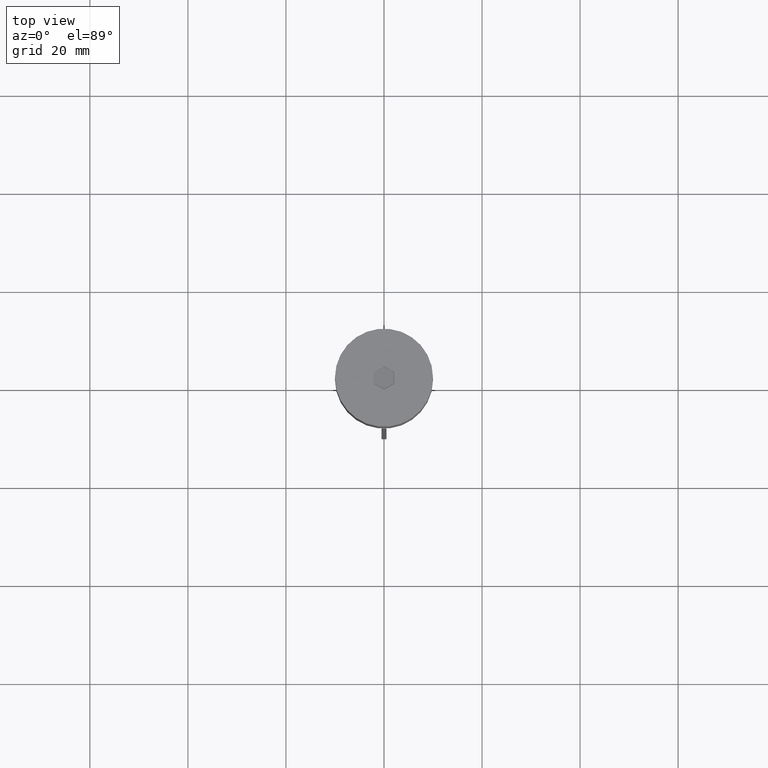
[diagram: clean part render]
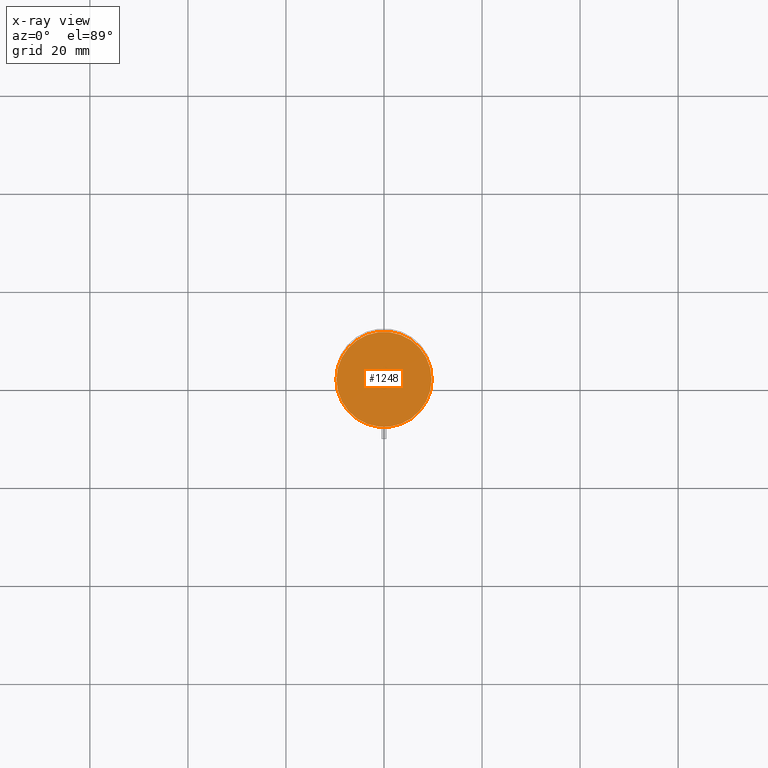
[diagram: x-ray — body ghosted, one internal face saturated and labeled with its STEP entity id]
A machine part, top view, then the same camera in x-ray: the body is ghosted and one INTERNAL B-rep face — a face not visible from any outside direction — is saturated and labeled: STEP entity #1248.
In plain terms, the highlighted planar face has unit normal (0, 0, -1).
Its self-contained STEP definition (entity closure, byte-faithful):
#156 = FACE_OUTER_BOUND ( 'NONE', #1612, .T. ) ;
#315 = EDGE_CURVE ( 'NONE', #1203, #1536, #1941, .T. ) ;
#426 = DIRECTION ( 'NONE',  ( -1.000000000000000000, 0.000000000000000000, -0.000000000000000000 ) ) ;
#438 = EDGE_CURVE ( 'NONE', #1536, #1203, #1187, .T. ) ;
#557 = DIRECTION ( 'NONE',  ( -0.000000000000000000, -0.000000000000000000, 1.000000000000000000 ) ) ;
#585 = PLANE ( 'NONE',  #672 ) ;
#609 = AXIS2_PLACEMENT_3D ( 'NONE', #2082, #1624, #1095 ) ;
#672 = AXIS2_PLACEMENT_3D ( 'NONE', #1108, #1891, #426 ) ;
#876 = DIRECTION ( 'NONE',  ( -1.000000000000000000, 0.000000000000000000, 0.000000000000000000 ) ) ;
#928 = ORIENTED_EDGE ( 'NONE', *, *, #315, .T. ) ;
#1049 = CARTESIAN_POINT ( 'NONE',  ( 0.000000000000000000, 0.000000000000000000, -20.49999999999999645 ) ) ;
#1095 = DIRECTION ( 'NONE',  ( -1.000000000000000000, 0.000000000000000000, 0.000000000000000000 ) ) ;
#1108 = CARTESIAN_POINT ( 'NONE',  ( 0.000000000000000000, 0.000000000000000000, -20.49999999999999645 ) ) ;
#1187 = CIRCLE ( 'NONE', #609, 9.700000000000002842 ) ;
#1203 = VERTEX_POINT ( 'NONE', #1450 ) ;
#1248 = ADVANCED_FACE ( 'NONE', ( #156 ), #585, .F. ) ;
#1291 = AXIS2_PLACEMENT_3D ( 'NONE', #1049, #557, #876 ) ;
#1352 = CARTESIAN_POINT ( 'NONE',  ( -9.700000000000002842, 0.000000000000000000, -20.49999999999999645 ) ) ;
#1419 = ORIENTED_EDGE ( 'NONE', *, *, #438, .T. ) ;
#1450 = CARTESIAN_POINT ( 'NONE',  ( 9.700000000000002842, 1.206277097160143024E-15, -20.49999999999999645 ) ) ;
#1536 = VERTEX_POINT ( 'NONE', #1352 ) ;
#1612 = EDGE_LOOP ( 'NONE', ( #1419, #928 ) ) ;
#1624 = DIRECTION ( 'NONE',  ( -0.000000000000000000, -0.000000000000000000, 1.000000000000000000 ) ) ;
#1891 = DIRECTION ( 'NONE',  ( 0.000000000000000000, 0.000000000000000000, -1.000000000000000000 ) ) ;
#1941 = CIRCLE ( 'NONE', #1291, 9.700000000000002842 ) ;
#2082 = CARTESIAN_POINT ( 'NONE',  ( 0.000000000000000000, 0.000000000000000000, -20.49999999999999645 ) ) ;